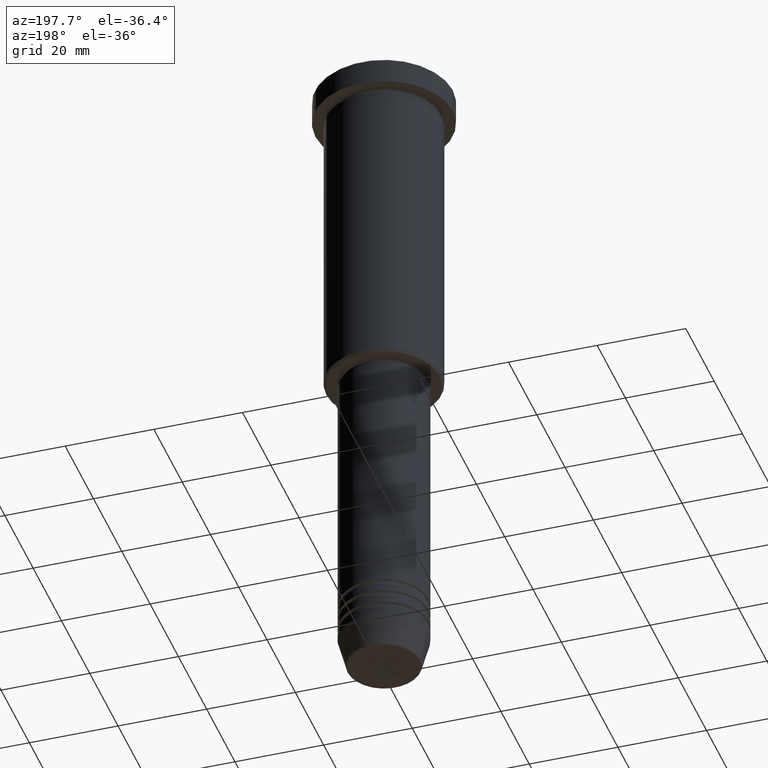
[diagram: clean part render]
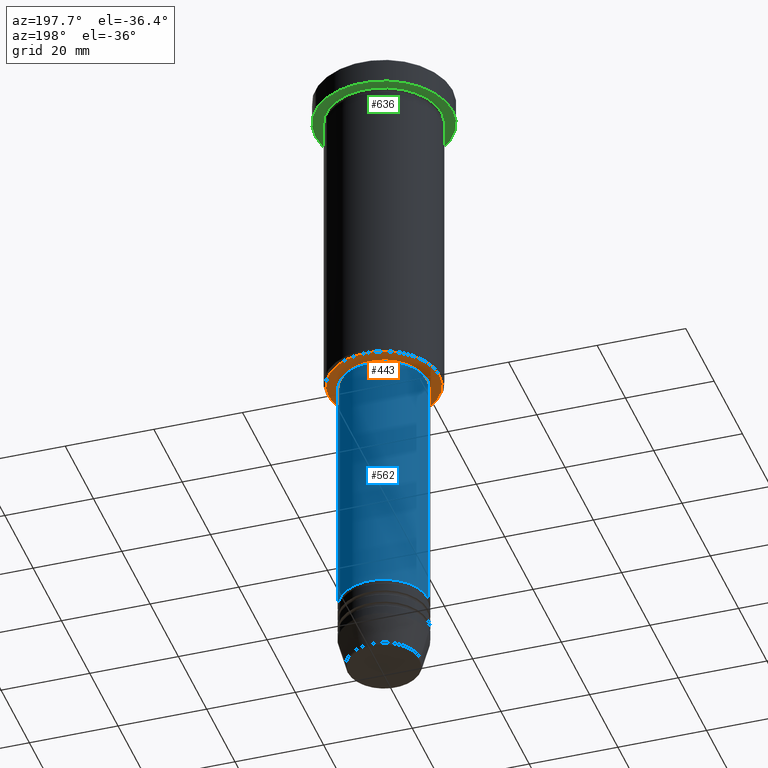
[diagram: same view with three faces highlighted in distinct colors, each labeled with its STEP entity id]
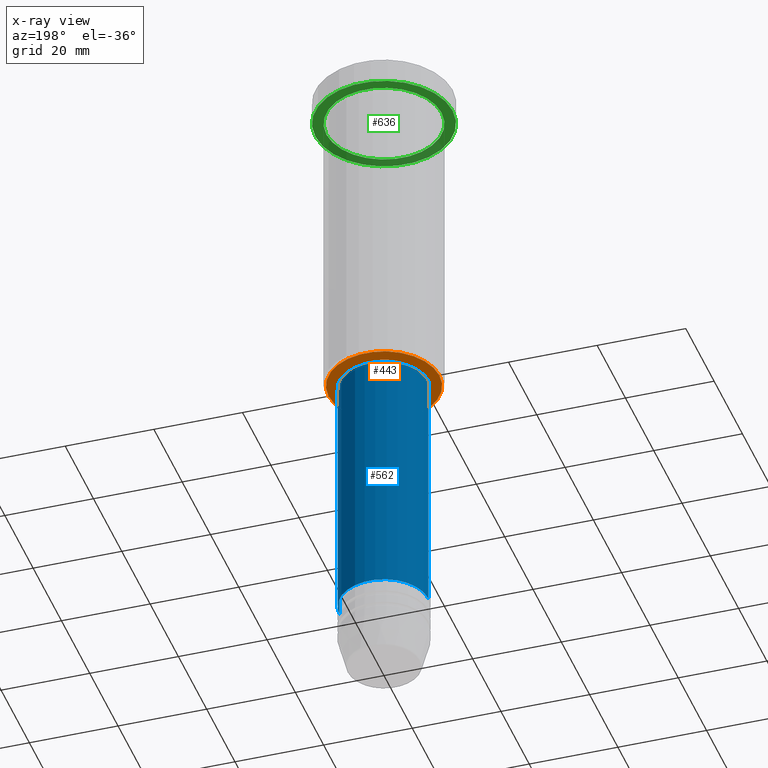
[diagram: x-ray of the same camera — body ghosted, the three highlighted faces saturated]
A machine part, auxiliary view with three faces highlighted in distinct colors.
The next image is the same camera in x-ray (body ghosted, the three faces saturated) — at least one of them is partly hidden behind the body in this view.
Their STEP definitions:

[orange] entity #443 — the highlighted planar face has unit normal (0, 0, -1).
#21 = CARTESIAN_POINT ( 'NONE',  ( 12.49999999999995559, 0.000000000000000000, -75.99999999999998579 ) ) ;
#33 = CARTESIAN_POINT ( 'NONE',  ( 0.000000000000000000, 0.000000000000000000, -75.99999999999998579 ) ) ;
#49 = VERTEX_POINT ( 'NONE', #21 ) ;
#60 = ORIENTED_EDGE ( 'NONE', *, *, #644, .T. ) ;
#73 = DIRECTION ( 'NONE',  ( 0.000000000000000000, 0.000000000000000000, -1.000000000000000000 ) ) ;
#80 = EDGE_LOOP ( 'NONE', ( #811, #465 ) ) ;
#119 = EDGE_CURVE ( 'NONE', #49, #1124, #1005, .T. ) ;
#190 = VERTEX_POINT ( 'NONE', #642 ) ;
#231 = DIRECTION ( 'NONE',  ( -1.000000000000000000, 0.000000000000000000, 0.000000000000000000 ) ) ;
#296 = DIRECTION ( 'NONE',  ( 0.000000000000000000, 0.000000000000000000, -1.000000000000000000 ) ) ;
#303 = DIRECTION ( 'NONE',  ( 0.000000000000000000, 0.000000000000000000, -1.000000000000000000 ) ) ;
#365 = FACE_OUTER_BOUND ( 'NONE', #80, .T. ) ;
#438 = PLANE ( 'NONE',  #1059 ) ;
#443 = ADVANCED_FACE ( 'NONE', ( #365, #1074 ), #438, .T. ) ;
#465 = ORIENTED_EDGE ( 'NONE', *, *, #751, .T. ) ;
#511 = EDGE_LOOP ( 'NONE', ( #60, #930 ) ) ;
#528 = DIRECTION ( 'NONE',  ( -0.000000000000000000, -0.000000000000000000, 1.000000000000000000 ) ) ;
#573 = AXIS2_PLACEMENT_3D ( 'NONE', #950, #695, #789 ) ;
#635 = DIRECTION ( 'NONE',  ( -1.000000000000000000, 0.000000000000000000, -0.000000000000000000 ) ) ;
#642 = CARTESIAN_POINT ( 'NONE',  ( 9.500000000000000000, 0.000000000000000000, -75.99999999999998579 ) ) ;
#644 = EDGE_CURVE ( 'NONE', #190, #1164, #783, .T. ) ;
#695 = DIRECTION ( 'NONE',  ( -0.000000000000000000, -0.000000000000000000, 1.000000000000000000 ) ) ;
#739 = EDGE_CURVE ( 'NONE', #1164, #190, #802, .T. ) ;
#751 = EDGE_CURVE ( 'NONE', #1124, #49, #1154, .T. ) ;
#759 = CARTESIAN_POINT ( 'NONE',  ( 0.000000000000000000, 0.000000000000000000, -75.99999999999998579 ) ) ;
#765 = AXIS2_PLACEMENT_3D ( 'NONE', #33, #528, #875 ) ;
#783 = CIRCLE ( 'NONE', #573, 9.500000000000000000 ) ;
#789 = DIRECTION ( 'NONE',  ( 1.000000000000000000, 0.000000000000000000, 0.000000000000000000 ) ) ;
#800 = CARTESIAN_POINT ( 'NONE',  ( 0.000000000000000000, 13.00000000000000000, -75.99999999999998579 ) ) ;
#802 = CIRCLE ( 'NONE', #765, 9.500000000000000000 ) ;
#811 = ORIENTED_EDGE ( 'NONE', *, *, #119, .T. ) ;
#855 = CARTESIAN_POINT ( 'NONE',  ( -9.500000000000000000, 1.163414459189985485E-15, -75.99999999999998579 ) ) ;
#875 = DIRECTION ( 'NONE',  ( 1.000000000000000000, 0.000000000000000000, 0.000000000000000000 ) ) ;
#930 = ORIENTED_EDGE ( 'NONE', *, *, #739, .T. ) ;
#950 = CARTESIAN_POINT ( 'NONE',  ( 0.000000000000000000, 0.000000000000000000, -75.99999999999998579 ) ) ;
#954 = CARTESIAN_POINT ( 'NONE',  ( -12.49999999999995559, 1.561424668912872745E-15, -75.99999999999998579 ) ) ;
#1005 = CIRCLE ( 'NONE', #1021, 12.49999999999995559 ) ;
#1021 = AXIS2_PLACEMENT_3D ( 'NONE', #759, #296, #1106 ) ;
#1040 = CARTESIAN_POINT ( 'NONE',  ( 0.000000000000000000, 0.000000000000000000, -75.99999999999998579 ) ) ;
#1059 = AXIS2_PLACEMENT_3D ( 'NONE', #800, #73, #635 ) ;
#1074 = FACE_BOUND ( 'NONE', #511, .T. ) ;
#1098 = AXIS2_PLACEMENT_3D ( 'NONE', #1040, #303, #231 ) ;
#1106 = DIRECTION ( 'NONE',  ( -1.000000000000000000, 0.000000000000000000, 0.000000000000000000 ) ) ;
#1124 = VERTEX_POINT ( 'NONE', #954 ) ;
#1154 = CIRCLE ( 'NONE', #1098, 12.49999999999995559 ) ;
#1164 = VERTEX_POINT ( 'NONE', #855 ) ;

[blue] entity #562 — the highlighted cylindrical surface (partial cylindrical patch) has radius 10 mm, axis along (-0, -0, 1).
#39 = CARTESIAN_POINT ( 'NONE',  ( 10.00000000000000000, 0.000000000000000000, -134.9999999999999432 ) ) ;
#94 = DIRECTION ( 'NONE',  ( 1.000000000000000000, 0.000000000000000000, 0.000000000000000000 ) ) ;
#107 = CARTESIAN_POINT ( 'NONE',  ( -10.00000000000000000, 1.224646799147353256E-15, -134.9999999999999432 ) ) ;
#214 = DIRECTION ( 'NONE',  ( -0.000000000000000000, -0.000000000000000000, 1.000000000000000000 ) ) ;
#275 = CARTESIAN_POINT ( 'NONE',  ( 10.00000000000000000, 0.000000000000000000, 0.000000000000000000 ) ) ;
#279 = DIRECTION ( 'NONE',  ( -0.000000000000000000, -0.000000000000000000, 1.000000000000000000 ) ) ;
#341 = CIRCLE ( 'NONE', #609, 10.00000000000000000 ) ;
#350 = ORIENTED_EDGE ( 'NONE', *, *, #974, .T. ) ;
#375 = EDGE_CURVE ( 'NONE', #557, #439, #523, .T. ) ;
#439 = VERTEX_POINT ( 'NONE', #620 ) ;
#471 = LINE ( 'NONE', #571, #1010 ) ;
#498 = ORIENTED_EDGE ( 'NONE', *, *, #375, .F. ) ;
#517 = ORIENTED_EDGE ( 'NONE', *, *, #1067, .T. ) ;
#523 = CIRCLE ( 'NONE', #1008, 10.00000000000000000 ) ;
#557 = VERTEX_POINT ( 'NONE', #662 ) ;
#562 = ADVANCED_FACE ( 'NONE', ( #574 ), #749, .T. ) ;
#565 = EDGE_CURVE ( 'NONE', #647, #557, #939, .T. ) ;
#571 = CARTESIAN_POINT ( 'NONE',  ( -10.00000000000000000, 1.224646799147353256E-15, 0.000000000000000000 ) ) ;
#574 = FACE_OUTER_BOUND ( 'NONE', #1036, .T. ) ;
#609 = AXIS2_PLACEMENT_3D ( 'NONE', #913, #279, #94 ) ;
#612 = VERTEX_POINT ( 'NONE', #107 ) ;
#620 = CARTESIAN_POINT ( 'NONE',  ( -10.00000000000000000, 1.224646799147353256E-15, -76.99999999999998579 ) ) ;
#647 = VERTEX_POINT ( 'NONE', #39 ) ;
#662 = CARTESIAN_POINT ( 'NONE',  ( 10.00000000000000000, 0.000000000000000000, -76.99999999999998579 ) ) ;
#735 = DIRECTION ( 'NONE',  ( -0.000000000000000000, -0.000000000000000000, 1.000000000000000000 ) ) ;
#749 = CYLINDRICAL_SURFACE ( 'NONE', #1006, 10.00000000000000000 ) ;
#820 = CARTESIAN_POINT ( 'NONE',  ( 0.000000000000000000, 0.000000000000000000, -76.99999999999998579 ) ) ;
#832 = DIRECTION ( 'NONE',  ( -0.000000000000000000, -0.000000000000000000, 1.000000000000000000 ) ) ;
#898 = DIRECTION ( 'NONE',  ( -0.000000000000000000, -0.000000000000000000, 1.000000000000000000 ) ) ;
#913 = CARTESIAN_POINT ( 'NONE',  ( 0.000000000000000000, 0.000000000000000000, -134.9999999999999432 ) ) ;
#922 = CARTESIAN_POINT ( 'NONE',  ( 0.000000000000000000, 0.000000000000000000, 0.000000000000000000 ) ) ;
#932 = ORIENTED_EDGE ( 'NONE', *, *, #565, .F. ) ;
#939 = LINE ( 'NONE', #275, #989 ) ;
#974 = EDGE_CURVE ( 'NONE', #647, #612, #341, .T. ) ;
#989 = VECTOR ( 'NONE', #832, 1000.000000000000000 ) ;
#1006 = AXIS2_PLACEMENT_3D ( 'NONE', #922, #214, #1090 ) ;
#1008 = AXIS2_PLACEMENT_3D ( 'NONE', #820, #898, #1167 ) ;
#1010 = VECTOR ( 'NONE', #735, 1000.000000000000000 ) ;
#1036 = EDGE_LOOP ( 'NONE', ( #350, #517, #498, #932 ) ) ;
#1067 = EDGE_CURVE ( 'NONE', #612, #439, #471, .T. ) ;
#1090 = DIRECTION ( 'NONE',  ( 1.000000000000000000, 0.000000000000000000, 0.000000000000000000 ) ) ;
#1167 = DIRECTION ( 'NONE',  ( 1.000000000000000000, 0.000000000000000000, 0.000000000000000000 ) ) ;

[green] entity #636 — the highlighted planar face has unit normal (0, 0, -1).
#10 = CIRCLE ( 'NONE', #767, 15.50000000000000000 ) ;
#14 = FACE_BOUND ( 'NONE', #96, .T. ) ;
#44 = CIRCLE ( 'NONE', #543, 13.00000000000000000 ) ;
#66 = CIRCLE ( 'NONE', #785, 13.00000000000000000 ) ;
#93 = VERTEX_POINT ( 'NONE', #403 ) ;
#96 = EDGE_LOOP ( 'NONE', ( #1049, #139 ) ) ;
#137 = DIRECTION ( 'NONE',  ( -1.000000000000000000, 0.000000000000000000, 0.000000000000000000 ) ) ;
#139 = ORIENTED_EDGE ( 'NONE', *, *, #689, .T. ) ;
#167 = CARTESIAN_POINT ( 'NONE',  ( -13.00000000000000000, 0.000000000000000000, -5.999999999999994671 ) ) ;
#174 = DIRECTION ( 'NONE',  ( -0.000000000000000000, -0.000000000000000000, 1.000000000000000000 ) ) ;
#180 = ORIENTED_EDGE ( 'NONE', *, *, #1113, .F. ) ;
#222 = CARTESIAN_POINT ( 'NONE',  ( 0.000000000000000000, 0.000000000000000000, -5.999999999999995559 ) ) ;
#227 = AXIS2_PLACEMENT_3D ( 'NONE', #514, #600, #869 ) ;
#228 = AXIS2_PLACEMENT_3D ( 'NONE', #1145, #730, #798 ) ;
#240 = CARTESIAN_POINT ( 'NONE',  ( 0.000000000000000000, 0.000000000000000000, -5.999999999999995559 ) ) ;
#283 = CIRCLE ( 'NONE', #228, 15.50000000000000000 ) ;
#322 = VERTEX_POINT ( 'NONE', #413 ) ;
#368 = EDGE_CURVE ( 'NONE', #489, #93, #44, .T. ) ;
#403 = CARTESIAN_POINT ( 'NONE',  ( 13.00000000000000000, 1.592040838891559095E-15, -5.999999999999994671 ) ) ;
#413 = CARTESIAN_POINT ( 'NONE',  ( 15.50000000000000000, 0.000000000000000000, -5.999999999999995559 ) ) ;
#461 = CARTESIAN_POINT ( 'NONE',  ( 0.000000000000000000, 0.000000000000000000, -5.999999999999995559 ) ) ;
#489 = VERTEX_POINT ( 'NONE', #167 ) ;
#507 = DIRECTION ( 'NONE',  ( -0.000000000000000000, -0.000000000000000000, 1.000000000000000000 ) ) ;
#514 = CARTESIAN_POINT ( 'NONE',  ( 0.000000000000000000, 15.50000000000000000, -5.999999999999995559 ) ) ;
#543 = AXIS2_PLACEMENT_3D ( 'NONE', #461, #174, #641 ) ;
#587 = DIRECTION ( 'NONE',  ( 1.000000000000000000, 0.000000000000000000, 0.000000000000000000 ) ) ;
#600 = DIRECTION ( 'NONE',  ( 0.000000000000000000, 0.000000000000000000, -1.000000000000000000 ) ) ;
#636 = ADVANCED_FACE ( 'NONE', ( #14, #1128 ), #1034, .T. ) ;
#641 = DIRECTION ( 'NONE',  ( -1.000000000000000000, 0.000000000000000000, 0.000000000000000000 ) ) ;
#669 = EDGE_LOOP ( 'NONE', ( #1179, #180 ) ) ;
#689 = EDGE_CURVE ( 'NONE', #93, #489, #66, .T. ) ;
#730 = DIRECTION ( 'NONE',  ( -0.000000000000000000, -0.000000000000000000, 1.000000000000000000 ) ) ;
#767 = AXIS2_PLACEMENT_3D ( 'NONE', #222, #1132, #587 ) ;
#785 = AXIS2_PLACEMENT_3D ( 'NONE', #240, #507, #137 ) ;
#798 = DIRECTION ( 'NONE',  ( 1.000000000000000000, 0.000000000000000000, 0.000000000000000000 ) ) ;
#853 = EDGE_CURVE ( 'NONE', #322, #1026, #283, .T. ) ;
#869 = DIRECTION ( 'NONE',  ( -1.000000000000000000, 0.000000000000000000, -0.000000000000000000 ) ) ;
#1026 = VERTEX_POINT ( 'NONE', #1107 ) ;
#1034 = PLANE ( 'NONE',  #227 ) ;
#1049 = ORIENTED_EDGE ( 'NONE', *, *, #368, .T. ) ;
#1107 = CARTESIAN_POINT ( 'NONE',  ( -15.50000000000000000, 1.898202538678397557E-15, -5.999999999999995559 ) ) ;
#1113 = EDGE_CURVE ( 'NONE', #1026, #322, #10, .T. ) ;
#1128 = FACE_OUTER_BOUND ( 'NONE', #669, .T. ) ;
#1132 = DIRECTION ( 'NONE',  ( -0.000000000000000000, -0.000000000000000000, 1.000000000000000000 ) ) ;
#1145 = CARTESIAN_POINT ( 'NONE',  ( 0.000000000000000000, 0.000000000000000000, -5.999999999999995559 ) ) ;
#1179 = ORIENTED_EDGE ( 'NONE', *, *, #853, .F. ) ;